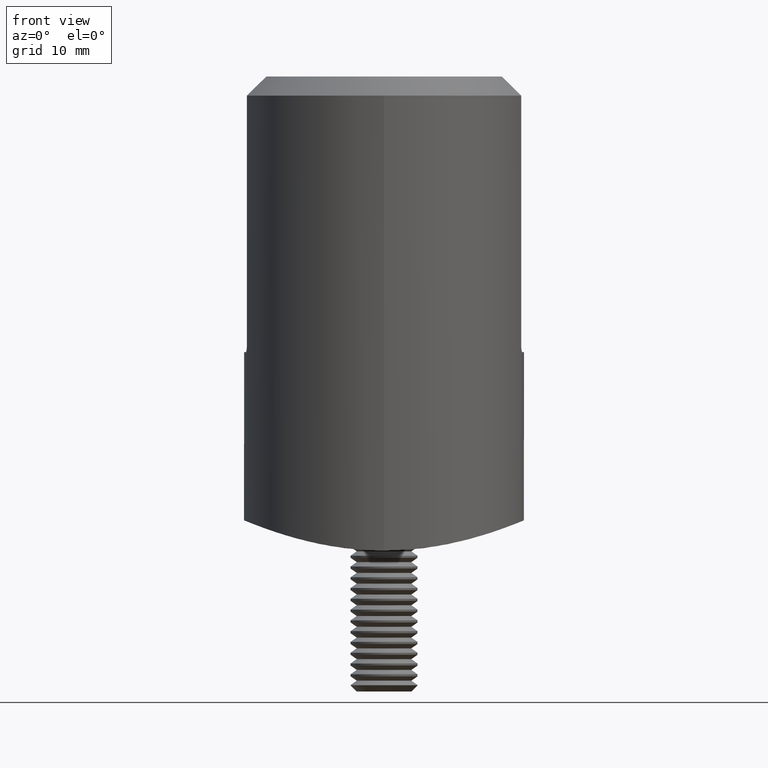
[diagram: clean part render]
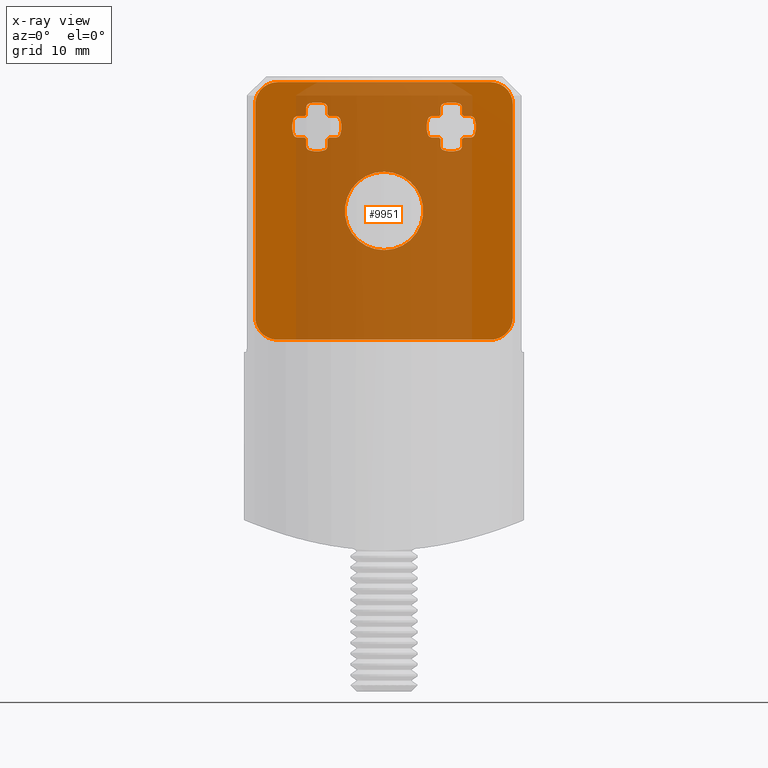
[diagram: x-ray — body ghosted, one internal face saturated and labeled with its STEP entity id]
A machine part, front view, then the same camera in x-ray: the body is ghosted and one INTERNAL B-rep face — a face not visible from any outside direction — is saturated and labeled: STEP entity #9951.
In plain terms, the highlighted planar face has unit normal (0, 1, 0).
Its self-contained STEP definition (entity closure, byte-faithful):
#58 = AXIS2_PLACEMENT_3D ( 'NONE', #18799, #20745, #11690 ) ;
#192 = DIRECTION ( 'NONE',  ( -0.000000000000000000, 1.000000000000000000, 0.000000000000000000 ) ) ;
#210 = CARTESIAN_POINT ( 'NONE',  ( -5.450000000000001954, 1.000000000000000000, 9.213913650100261421 ) ) ;
#223 = LINE ( 'NONE', #22734, #13898 ) ;
#231 = DIRECTION ( 'NONE',  ( 0.000000000000000000, 0.000000000000000000, -1.000000000000000000 ) ) ;
#240 = CARTESIAN_POINT ( 'NONE',  ( -7.713913650100259645, 1.000000000000000000, 8.049999999999997158 ) ) ;
#301 = EDGE_CURVE ( 'NONE', #4417, #6515, #223, .T. ) ;
#324 = DIRECTION ( 'NONE',  ( -0.000000000000000000, 1.000000000000000000, 0.000000000000000000 ) ) ;
#338 = CARTESIAN_POINT ( 'NONE',  ( 11.50000000000000000, 1.000000000000000000, 11.49999999999999822 ) ) ;
#375 = CARTESIAN_POINT ( 'NONE',  ( -6.950000000000002842, 1.000000000000000000, 0.000000000000000000 ) ) ;
#479 = CIRCLE ( 'NONE', #14997, 2.200000000000000622 ) ;
#503 = CIRCLE ( 'NONE', #13955, 2.200000000000000622 ) ;
#553 = EDGE_CURVE ( 'NONE', #1413, #20732, #2760, .T. ) ;
#574 = CARTESIAN_POINT ( 'NONE',  ( 5.050000000000003375, 1.000000000000000000, 5.786086349899735026 ) ) ;
#623 = EDGE_CURVE ( 'NONE', #3212, #16543, #5399, .T. ) ;
#761 = EDGE_CURVE ( 'NONE', #19794, #15722, #4260, .T. ) ;
#766 = VERTEX_POINT ( 'NONE', #11007 ) ;
#769 = CIRCLE ( 'NONE', #20100, 0.3999999999999993006 ) ;
#796 = VERTEX_POINT ( 'NONE', #7348 ) ;
#954 = DIRECTION ( 'NONE',  ( 0.000000000000000000, -1.000000000000000000, -0.000000000000000000 ) ) ;
#962 = VERTEX_POINT ( 'NONE', #22748 ) ;
#973 = ORIENTED_EDGE ( 'NONE', *, *, #17941, .T. ) ;
#993 = EDGE_CURVE ( 'NONE', #796, #21426, #10372, .T. ) ;
#1023 = LINE ( 'NONE', #7086, #22212 ) ;
#1083 = CARTESIAN_POINT ( 'NONE',  ( -4.102413672324902132E-15, 1.000000000000000000, 6.549999999999991829 ) ) ;
#1155 = ORIENTED_EDGE ( 'NONE', *, *, #17908, .T. ) ;
#1179 = VERTEX_POINT ( 'NONE', #3784 ) ;
#1210 = DIRECTION ( 'NONE',  ( -8.673617379884035472E-16, 0.000000000000000000, -1.000000000000000000 ) ) ;
#1258 = CIRCLE ( 'NONE', #14586, 2.200000000000000622 ) ;
#1303 = VECTOR ( 'NONE', #9917, 1000.000000000000000 ) ;
#1403 = DIRECTION ( 'NONE',  ( -0.000000000000000000, 1.000000000000000000, 0.000000000000000000 ) ) ;
#1413 = VERTEX_POINT ( 'NONE', #16980 ) ;
#1558 = VECTOR ( 'NONE', #21154, 1000.000000000000000 ) ;
#1572 = CARTESIAN_POINT ( 'NONE',  ( 0.000000000000000000, 1.000000000000000000, 3.499999999999999556 ) ) ;
#1666 = VECTOR ( 'NONE', #7416, 1000.000000000000000 ) ;
#1716 = CIRCLE ( 'NONE', #11156, 2.000000000000000000 ) ;
#1721 = AXIS2_PLACEMENT_3D ( 'NONE', #12728, #7114, #14383 ) ;
#1776 = VERTEX_POINT ( 'NONE', #1572 ) ;
#1853 = VERTEX_POINT ( 'NONE', #9840 ) ;
#1931 = ORIENTED_EDGE ( 'NONE', *, *, #12557, .T. ) ;
#1961 = CARTESIAN_POINT ( 'NONE',  ( 4.286086349899742132, 1.000000000000000000, 6.549999999999997158 ) ) ;
#1967 = CARTESIAN_POINT ( 'NONE',  ( -6.950000000000001954, 1.000000000000000000, 9.213913650100257868 ) ) ;
#1992 = CIRCLE ( 'NONE', #6859, 0.4000000000000001887 ) ;
#1993 = EDGE_LOOP ( 'NONE', ( #20672, #4667, #9730, #19158, #17075, #11727, #9665, #19939 ) ) ;
#2037 = EDGE_CURVE ( 'NONE', #21394, #6170, #11128, .T. ) ;
#2109 = CIRCLE ( 'NONE', #7543, 3.499999999999999556 ) ;
#2178 = EDGE_CURVE ( 'NONE', #11053, #21752, #19521, .T. ) ;
#2271 = EDGE_CURVE ( 'NONE', #6515, #20481, #9465, .T. ) ;
#2282 = ORIENTED_EDGE ( 'NONE', *, *, #2679, .T. ) ;
#2361 = CARTESIAN_POINT ( 'NONE',  ( 0.000000000000000000, 1.000000000000000000, 8.449999999999997513 ) ) ;
#2451 = CIRCLE ( 'NONE', #16913, 1.450000000000001732 ) ;
#2507 = CARTESIAN_POINT ( 'NONE',  ( -4.904554884986473517, 1.000000000000000000, 6.549999999999997158 ) ) ;
#2558 = CIRCLE ( 'NONE', #13274, 1.450000000000001732 ) ;
#2606 = VECTOR ( 'NONE', #8911, 1000.000000000000000 ) ;
#2679 = EDGE_CURVE ( 'NONE', #1853, #15145, #7787, .T. ) ;
#2760 = CIRCLE ( 'NONE', #16167, 2.200000000000000622 ) ;
#2773 = DIRECTION ( 'NONE',  ( -0.000000000000000000, 1.000000000000000000, 0.000000000000000000 ) ) ;
#2778 = CARTESIAN_POINT ( 'NONE',  ( 6.550000000000002487, 1.000000000000000000, 9.213913650100257868 ) ) ;
#2836 = CARTESIAN_POINT ( 'NONE',  ( 5.050000000000006928, 1.000000000000000000, 3.162929625227602515E-15 ) ) ;
#2855 = DIRECTION ( 'NONE',  ( -0.000000000000000000, 1.000000000000000000, 0.000000000000000000 ) ) ;
#2977 = CARTESIAN_POINT ( 'NONE',  ( -9.500000000000005329, 1.000000000000000000, -11.49999999999999112 ) ) ;
#3015 = VECTOR ( 'NONE', #14318, 1000.000000000000000 ) ;
#3046 = CARTESIAN_POINT ( 'NONE',  ( 6.000000000000002665, 1.000000000000000000, 7.499999999999996447 ) ) ;
#3049 = CARTESIAN_POINT ( 'NONE',  ( -7.713913650100259645, 1.000000000000000000, 8.449999999999997513 ) ) ;
#3061 = FACE_OUTER_BOUND ( 'NONE', #1993, .T. ) ;
#3126 = DIRECTION ( 'NONE',  ( 0.000000000000000000, 0.000000000000000000, -1.000000000000000000 ) ) ;
#3139 = EDGE_CURVE ( 'NONE', #4417, #22281, #8588, .T. ) ;
#3141 = DIRECTION ( 'NONE',  ( 0.000000000000000000, 0.000000000000000000, -1.000000000000000000 ) ) ;
#3168 = DIRECTION ( 'NONE',  ( 6.263226980648709475E-16, 0.000000000000000000, 1.000000000000000000 ) ) ;
#3202 = CIRCLE ( 'NONE', #13502, 1.450000000000001732 ) ;
#3212 = VERTEX_POINT ( 'NONE', #1967 ) ;
#3256 = DIRECTION ( 'NONE',  ( -0.000000000000000000, 1.000000000000000000, 0.000000000000000000 ) ) ;
#3291 = CARTESIAN_POINT ( 'NONE',  ( 0.000000000000000000, 1.000000000000000000, 0.000000000000000000 ) ) ;
#3337 = AXIS2_PLACEMENT_3D ( 'NONE', #15627, #8229, #1210 ) ;
#3365 = ORIENTED_EDGE ( 'NONE', *, *, #17071, .F. ) ;
#3378 = LINE ( 'NONE', #7955, #8144 ) ;
#3396 = ORIENTED_EDGE ( 'NONE', *, *, #20485, .F. ) ;
#3457 = VERTEX_POINT ( 'NONE', #9598 ) ;
#3493 = CARTESIAN_POINT ( 'NONE',  ( 0.000000000000000000, 1.000000000000000000, 6.549999999999997158 ) ) ;
#3548 = EDGE_CURVE ( 'NONE', #21394, #1179, #16955, .T. ) ;
#3604 = VERTEX_POINT ( 'NONE', #19109 ) ;
#3616 = FACE_BOUND ( 'NONE', #16482, .T. ) ;
#3649 = ORIENTED_EDGE ( 'NONE', *, *, #21243, .F. ) ;
#3651 = CARTESIAN_POINT ( 'NONE',  ( -7.095445115011707493, 1.000000000000000000, 8.449999999998414779 ) ) ;
#3695 = CARTESIAN_POINT ( 'NONE',  ( 8.094783350122543908, 1.000000000000000000, 6.827777777777773061 ) ) ;
#3734 = ORIENTED_EDGE ( 'NONE', *, *, #12730, .T. ) ;
#3784 = CARTESIAN_POINT ( 'NONE',  ( 5.050000000001583444, 1.000000000000000000, 8.595445115011701276 ) ) ;
#3805 = VERTEX_POINT ( 'NONE', #19494 ) ;
#3807 = EDGE_CURVE ( 'NONE', #3894, #17754, #503, .T. ) ;
#3831 = LINE ( 'NONE', #8892, #1666 ) ;
#3833 = ORIENTED_EDGE ( 'NONE', *, *, #12246, .T. ) ;
#3894 = VERTEX_POINT ( 'NONE', #15638 ) ;
#3913 = DIRECTION ( 'NONE',  ( 0.000000000000000000, 0.000000000000000000, -1.000000000000000000 ) ) ;
#3921 = CIRCLE ( 'NONE', #7757, 2.200000000000000622 ) ;
#4055 = AXIS2_PLACEMENT_3D ( 'NONE', #6706, #3256, #15759 ) ;
#4090 = DIRECTION ( 'NONE',  ( -0.000000000000000000, 1.000000000000000000, 0.000000000000000000 ) ) ;
#4200 = CARTESIAN_POINT ( 'NONE',  ( 11.49999999999999645, 1.000000000000000000, -9.500000000000000000 ) ) ;
#4260 = LINE ( 'NONE', #338, #2606 ) ;
#4319 = VERTEX_POINT ( 'NONE', #3651 ) ;
#4347 = CARTESIAN_POINT ( 'NONE',  ( -6.000000000000002665, 1.000000000000000000, 7.499999999999996447 ) ) ;
#4417 = VERTEX_POINT ( 'NONE', #11450 ) ;
#4480 = ORIENTED_EDGE ( 'NONE', *, *, #553, .T. ) ;
#4497 = CARTESIAN_POINT ( 'NONE',  ( -6.950000000000002842, 1.000000000000000000, 8.499999999999994671 ) ) ;
#4500 = CARTESIAN_POINT ( 'NONE',  ( -5.050000000000002487, 1.000000000000000000, 0.000000000000000000 ) ) ;
#4575 = LINE ( 'NONE', #3493, #1558 ) ;
#4615 = DIRECTION ( 'NONE',  ( 6.263226980648709475E-16, -0.000000000000000000, -1.000000000000000000 ) ) ;
#4637 = CARTESIAN_POINT ( 'NONE',  ( 4.286086349899742132, 1.000000000000000000, 8.449999999999997513 ) ) ;
#4667 = ORIENTED_EDGE ( 'NONE', *, *, #5213, .T. ) ;
#4727 = FACE_BOUND ( 'NONE', #14906, .T. ) ;
#4737 = CARTESIAN_POINT ( 'NONE',  ( 7.095445115013530923, 1.000000000000000000, 8.449999999999997513 ) ) ;
#4929 = CARTESIAN_POINT ( 'NONE',  ( -9.500000000000000000, 1.000000000000000000, 11.49999999999999645 ) ) ;
#4984 = ORIENTED_EDGE ( 'NONE', *, *, #17798, .T. ) ;
#5052 = DIRECTION ( 'NONE',  ( -6.263226980648714405E-16, -0.000000000000000000, 1.000000000000000000 ) ) ;
#5054 = VECTOR ( 'NONE', #6932, 1000.000000000000000 ) ;
#5061 = ORIENTED_EDGE ( 'NONE', *, *, #16147, .T. ) ;
#5118 = CARTESIAN_POINT ( 'NONE',  ( 6.949999999998421885, 1.000000000000000000, 8.595445115011701276 ) ) ;
#5130 = CIRCLE ( 'NONE', #18604, 2.000000000000000000 ) ;
#5213 = EDGE_CURVE ( 'NONE', #21426, #18526, #12705, .T. ) ;
#5273 = CARTESIAN_POINT ( 'NONE',  ( 5.327777777777778390, 1.000000000000000000, 9.594783350122536802 ) ) ;
#5287 = CARTESIAN_POINT ( 'NONE',  ( -6.672222222222226939, 1.000000000000000000, 5.405216649877457868 ) ) ;
#5319 = DIRECTION ( 'NONE',  ( -0.000000000000000000, 1.000000000000000000, 0.000000000000000000 ) ) ;
#5399 = LINE ( 'NONE', #4497, #18232 ) ;
#5402 = CARTESIAN_POINT ( 'NONE',  ( 7.713913650100264086, 1.000000000000000000, 8.049999999999997158 ) ) ;
#5469 = DIRECTION ( 'NONE',  ( 0.000000000000000000, 0.000000000000000000, -1.000000000000000000 ) ) ;
#5572 = AXIS2_PLACEMENT_3D ( 'NONE', #5759, #16439, #7792 ) ;
#5576 = CIRCLE ( 'NONE', #10001, 0.4000000000000001887 ) ;
#5610 = EDGE_CURVE ( 'NONE', #4319, #11961, #11840, .T. ) ;
#5755 = EDGE_CURVE ( 'NONE', #20481, #15097, #4575, .T. ) ;
#5759 = CARTESIAN_POINT ( 'NONE',  ( -6.000000000000002665, 1.000000000000000000, 7.499999999999996447 ) ) ;
#6028 = LINE ( 'NONE', #18959, #1303 ) ;
#6131 = CARTESIAN_POINT ( 'NONE',  ( -4.286086349899735914, 1.000000000000000000, 8.049999999999997158 ) ) ;
#6139 = AXIS2_PLACEMENT_3D ( 'NONE', #6171, #18649, #19211 ) ;
#6155 = VERTEX_POINT ( 'NONE', #3695 ) ;
#6170 = VERTEX_POINT ( 'NONE', #5273 ) ;
#6171 = CARTESIAN_POINT ( 'NONE',  ( 9.499999999999996447, 1.000000000000000000, -9.500000000000000000 ) ) ;
#6195 = VERTEX_POINT ( 'NONE', #19492 ) ;
#6241 = AXIS2_PLACEMENT_3D ( 'NONE', #7460, #19966, #9254 ) ;
#6312 = CARTESIAN_POINT ( 'NONE',  ( 5.050000000000002487, 1.000000000000000000, 8.499999999999994671 ) ) ;
#6373 = DIRECTION ( 'NONE',  ( 0.000000000000000000, 0.000000000000000000, -1.000000000000000000 ) ) ;
#6510 = AXIS2_PLACEMENT_3D ( 'NONE', #20627, #6742, #22553 ) ;
#6515 = VERTEX_POINT ( 'NONE', #10411 ) ;
#6548 = AXIS2_PLACEMENT_3D ( 'NONE', #10684, #18396, #7727 ) ;
#6594 = VECTOR ( 'NONE', #22435, 1000.000000000000000 ) ;
#6706 = CARTESIAN_POINT ( 'NONE',  ( 5.450000000000002842, 1.000000000000000000, 5.786086349899735026 ) ) ;
#6708 = EDGE_CURVE ( 'NONE', #7193, #21456, #5130, .T. ) ;
#6728 = VERTEX_POINT ( 'NONE', #17056 ) ;
#6742 = DIRECTION ( 'NONE',  ( -0.000000000000000000, 1.000000000000000000, 0.000000000000000000 ) ) ;
#6753 = ORIENTED_EDGE ( 'NONE', *, *, #7885, .F. ) ;
#6818 = VERTEX_POINT ( 'NONE', #21129 ) ;
#6819 = DIRECTION ( 'NONE',  ( 0.000000000000000000, -1.000000000000000000, 0.000000000000000000 ) ) ;
#6842 = DIRECTION ( 'NONE',  ( 0.000000000000000000, -1.000000000000000000, -0.000000000000000000 ) ) ;
#6849 = DIRECTION ( 'NONE',  ( 0.000000000000000000, -1.000000000000000000, -0.000000000000000000 ) ) ;
#6859 = AXIS2_PLACEMENT_3D ( 'NONE', #9648, #11271, #12912 ) ;
#6878 = ORIENTED_EDGE ( 'NONE', *, *, #14204, .F. ) ;
#6928 = ORIENTED_EDGE ( 'NONE', *, *, #11594, .T. ) ;
#6930 = CARTESIAN_POINT ( 'NONE',  ( 6.672222222222225163, 1.000000000000000000, 9.594783350122536802 ) ) ;
#6932 = DIRECTION ( 'NONE',  ( -1.000000000000000000, -0.000000000000000000, 5.279593187755499510E-16 ) ) ;
#6958 = DIRECTION ( 'NONE',  ( 0.000000000000000000, -1.000000000000000000, -0.000000000000000000 ) ) ;
#7086 = CARTESIAN_POINT ( 'NONE',  ( 6.950000000000008171, 1.000000000000000000, 4.352942751550861476E-15 ) ) ;
#7114 = DIRECTION ( 'NONE',  ( 0.000000000000000000, -1.000000000000000000, -0.000000000000000000 ) ) ;
#7123 = DIRECTION ( 'NONE',  ( -0.000000000000000000, 1.000000000000000000, 0.000000000000000000 ) ) ;
#7147 = DIRECTION ( 'NONE',  ( 0.000000000000000000, 0.000000000000000000, -1.000000000000000000 ) ) ;
#7193 = VERTEX_POINT ( 'NONE', #21974 ) ;
#7271 = CARTESIAN_POINT ( 'NONE',  ( 6.950000000000001954, 1.000000000000000000, 9.213913650100257868 ) ) ;
#7285 = CARTESIAN_POINT ( 'NONE',  ( 9.500000000000000000, 1.000000000000000000, 9.499999999999998224 ) ) ;
#7340 = LINE ( 'NONE', #9268, #17113 ) ;
#7348 = CARTESIAN_POINT ( 'NONE',  ( 9.499999999999994671, 1.000000000000000000, -11.50000000000000000 ) ) ;
#7377 = DIRECTION ( 'NONE',  ( -0.000000000000000000, 1.000000000000000000, 0.000000000000000000 ) ) ;
#7416 = DIRECTION ( 'NONE',  ( 1.508455196501572415E-16, -0.000000000000000000, 1.000000000000000000 ) ) ;
#7460 = CARTESIAN_POINT ( 'NONE',  ( 6.000000000000002665, 1.000000000000000000, 7.499999999999996447 ) ) ;
#7478 = CARTESIAN_POINT ( 'NONE',  ( 6.000000000000002665, 1.000000000000000000, 7.499999999999996447 ) ) ;
#7543 = AXIS2_PLACEMENT_3D ( 'NONE', #13264, #22144, #20453 ) ;
#7551 = ORIENTED_EDGE ( 'NONE', *, *, #623, .T. ) ;
#7567 = DIRECTION ( 'NONE',  ( 0.000000000000000000, -1.000000000000000000, -0.000000000000000000 ) ) ;
#7641 = EDGE_CURVE ( 'NONE', #13783, #3805, #7340, .T. ) ;
#7727 = DIRECTION ( 'NONE',  ( 0.000000000000000000, 0.000000000000000000, -1.000000000000000000 ) ) ;
#7757 = AXIS2_PLACEMENT_3D ( 'NONE', #16093, #6958, #17749 ) ;
#7787 = LINE ( 'NONE', #19472, #3015 ) ;
#7792 = DIRECTION ( 'NONE',  ( 0.000000000000000000, 0.000000000000000000, -1.000000000000000000 ) ) ;
#7863 = VERTEX_POINT ( 'NONE', #8466 ) ;
#7877 = EDGE_CURVE ( 'NONE', #3805, #8539, #13187, .T. ) ;
#7885 = EDGE_CURVE ( 'NONE', #3894, #15097, #14884, .T. ) ;
#7943 = EDGE_CURVE ( 'NONE', #8539, #21752, #12904, .T. ) ;
#7955 = CARTESIAN_POINT ( 'NONE',  ( -5.000000000000003553, 1.000000000000000000, 8.449999999999997513 ) ) ;
#8144 = VECTOR ( 'NONE', #15048, 1000.000000000000000 ) ;
#8229 = DIRECTION ( 'NONE',  ( -0.000000000000000000, 1.000000000000000000, 0.000000000000000000 ) ) ;
#8246 = ORIENTED_EDGE ( 'NONE', *, *, #12071, .T. ) ;
#8376 = DIRECTION ( 'NONE',  ( 0.000000000000000000, -1.000000000000000000, -0.000000000000000000 ) ) ;
#8419 = VECTOR ( 'NONE', #18012, 1000.000000000000000 ) ;
#8466 = CARTESIAN_POINT ( 'NONE',  ( -5.327777777777780166, 1.000000000000000000, 9.594783350122540355 ) ) ;
#8482 = CIRCLE ( 'NONE', #20688, 0.3999999999999993006 ) ;
#8539 = VERTEX_POINT ( 'NONE', #10698 ) ;
#8570 = CIRCLE ( 'NONE', #22443, 2.200000000000000622 ) ;
#8588 = CIRCLE ( 'NONE', #9926, 0.4000000000000001887 ) ;
#8757 = EDGE_CURVE ( 'NONE', #18615, #16619, #3378, .T. ) ;
#8814 = CARTESIAN_POINT ( 'NONE',  ( 0.000000000000000000, 1.000000000000000000, 8.449999999999997513 ) ) ;
#8892 = CARTESIAN_POINT ( 'NONE',  ( -11.50000000000000000, 1.000000000000000000, 11.49999999999999645 ) ) ;
#8911 = DIRECTION ( 'NONE',  ( -1.508455196501571429E-16, 0.000000000000000000, -1.000000000000000000 ) ) ;
#8994 = VERTEX_POINT ( 'NONE', #4637 ) ;
#9176 = DIRECTION ( 'NONE',  ( 1.000000000000000000, 0.000000000000000000, -6.263226980648714405E-16 ) ) ;
#9220 = CIRCLE ( 'NONE', #9399, 0.3999999999999993006 ) ;
#9254 = DIRECTION ( 'NONE',  ( 0.000000000000000000, 0.000000000000000000, -1.000000000000000000 ) ) ;
#9268 = CARTESIAN_POINT ( 'NONE',  ( 5.000000000000003553, 1.000000000000000000, 6.549999999999997158 ) ) ;
#9399 = AXIS2_PLACEMENT_3D ( 'NONE', #2778, #2855, #6373 ) ;
#9465 = CIRCLE ( 'NONE', #5572, 1.450000000000001732 ) ;
#9507 = DIRECTION ( 'NONE',  ( -2.168404344971007685E-15, 0.000000000000000000, -1.000000000000000000 ) ) ;
#9568 = EDGE_CURVE ( 'NONE', #21456, #766, #20405, .T. ) ;
#9598 = CARTESIAN_POINT ( 'NONE',  ( -5.050000000000002487, 1.000000000000000000, 8.595445115013525594 ) ) ;
#9643 = ORIENTED_EDGE ( 'NONE', *, *, #5755, .T. ) ;
#9648 = CARTESIAN_POINT ( 'NONE',  ( 7.713913650100264086, 1.000000000000000000, 6.949999999999995737 ) ) ;
#9665 = ORIENTED_EDGE ( 'NONE', *, *, #761, .T. ) ;
#9730 = ORIENTED_EDGE ( 'NONE', *, *, #15258, .T. ) ;
#9762 = CIRCLE ( 'NONE', #13395, 1.450000000000001732 ) ;
#9766 = AXIS2_PLACEMENT_3D ( 'NONE', #10954, #7377, #12675 ) ;
#9794 = LINE ( 'NONE', #1083, #22605 ) ;
#9840 = CARTESIAN_POINT ( 'NONE',  ( 7.713913650100264086, 1.000000000000000000, 8.449999999999997513 ) ) ;
#9917 = DIRECTION ( 'NONE',  ( 0.000000000000000000, 0.000000000000000000, 1.000000000000000000 ) ) ;
#9926 = AXIS2_PLACEMENT_3D ( 'NONE', #17417, #21087, #10392 ) ;
#9951 = ADVANCED_FACE ( 'NONE', ( #17621, #3061, #4727, #3616 ), #13849, .F. ) ;
#9966 = EDGE_CURVE ( 'NONE', #766, #19794, #1716, .T. ) ;
#9992 = CIRCLE ( 'NONE', #13309, 1.450000000000001732 ) ;
#9994 = EDGE_CURVE ( 'NONE', #13783, #10332, #11175, .T. ) ;
#10001 = AXIS2_PLACEMENT_3D ( 'NONE', #10661, #16114, #21491 ) ;
#10176 = CARTESIAN_POINT ( 'NONE',  ( 5.050000000000002487, 1.000000000000000000, 9.213913650100257868 ) ) ;
#10178 = VERTEX_POINT ( 'NONE', #18808 ) ;
#10194 = ORIENTED_EDGE ( 'NONE', *, *, #17938, .T. ) ;
#10332 = VERTEX_POINT ( 'NONE', #22989 ) ;
#10355 = ORIENTED_EDGE ( 'NONE', *, *, #12823, .F. ) ;
#10372 = LINE ( 'NONE', #19125, #5054 ) ;
#10374 = ORIENTED_EDGE ( 'NONE', *, *, #11580, .T. ) ;
#10392 = DIRECTION ( 'NONE',  ( 0.000000000000000000, 0.000000000000000000, -1.000000000000000000 ) ) ;
#10394 = CARTESIAN_POINT ( 'NONE',  ( -6.000000000000002665, 1.000000000000000000, 7.499999999999996447 ) ) ;
#10411 = CARTESIAN_POINT ( 'NONE',  ( -5.050000000001583444, 1.000000000000000000, 6.404554884988290731 ) ) ;
#10457 = EDGE_CURVE ( 'NONE', #1413, #11961, #22015, .T. ) ;
#10597 = DIRECTION ( 'NONE',  ( 0.000000000000000000, 0.000000000000000000, -1.000000000000000000 ) ) ;
#10661 = CARTESIAN_POINT ( 'NONE',  ( 6.550000000000003375, 1.000000000000000000, 5.786086349899735026 ) ) ;
#10679 = CARTESIAN_POINT ( 'NONE',  ( -6.672222222222226051, 1.000000000000000000, 9.594783350122536802 ) ) ;
#10684 = CARTESIAN_POINT ( 'NONE',  ( -6.000000000000002665, 1.000000000000000000, 7.499999999999996447 ) ) ;
#10698 = CARTESIAN_POINT ( 'NONE',  ( 5.050000000000002487, 1.000000000000000000, 6.404554884986466412 ) ) ;
#10708 = EDGE_CURVE ( 'NONE', #12458, #17042, #9220, .T. ) ;
#10902 = CIRCLE ( 'NONE', #16420, 0.4000000000000001887 ) ;
#10954 = CARTESIAN_POINT ( 'NONE',  ( 4.286086349899742132, 1.000000000000000000, 8.049999999999997158 ) ) ;
#11007 = CARTESIAN_POINT ( 'NONE',  ( 9.499999999999998224, 1.000000000000000000, 11.49999999999999822 ) ) ;
#11053 = VERTEX_POINT ( 'NONE', #14646 ) ;
#11089 = VECTOR ( 'NONE', #15129, 1000.000000000000000 ) ;
#11112 = CARTESIAN_POINT ( 'NONE',  ( -7.000000000000002665, 1.000000000000000000, 6.549999999999996270 ) ) ;
#11113 = DIRECTION ( 'NONE',  ( -0.000000000000000000, 1.000000000000000000, 0.000000000000000000 ) ) ;
#11124 = ORIENTED_EDGE ( 'NONE', *, *, #7877, .T. ) ;
#11128 = CIRCLE ( 'NONE', #58, 0.3999999999999993006 ) ;
#11142 = DIRECTION ( 'NONE',  ( 0.000000000000000000, 0.000000000000000000, -1.000000000000000000 ) ) ;
#11156 = AXIS2_PLACEMENT_3D ( 'NONE', #7285, #16244, #21553 ) ;
#11175 = CIRCLE ( 'NONE', #21181, 0.4000000000000001887 ) ;
#11271 = DIRECTION ( 'NONE',  ( -0.000000000000000000, 1.000000000000000000, 0.000000000000000000 ) ) ;
#11290 = ORIENTED_EDGE ( 'NONE', *, *, #17346, .T. ) ;
#11450 = CARTESIAN_POINT ( 'NONE',  ( -5.050000000000003375, 1.000000000000000000, 5.786086349899735026 ) ) ;
#11467 = ORIENTED_EDGE ( 'NONE', *, *, #10457, .F. ) ;
#11480 = EDGE_CURVE ( 'NONE', #15145, #11550, #9762, .T. ) ;
#11550 = VERTEX_POINT ( 'NONE', #5118 ) ;
#11580 = EDGE_CURVE ( 'NONE', #6155, #6728, #22280, .T. ) ;
#11594 = EDGE_CURVE ( 'NONE', #6818, #16132, #18383, .T. ) ;
#11629 = AXIS2_PLACEMENT_3D ( 'NONE', #12068, #1403, #10597 ) ;
#11686 = ORIENTED_EDGE ( 'NONE', *, *, #7641, .T. ) ;
#11690 = DIRECTION ( 'NONE',  ( 0.000000000000000000, 0.000000000000000000, -1.000000000000000000 ) ) ;
#11727 = ORIENTED_EDGE ( 'NONE', *, *, #9966, .T. ) ;
#11840 = LINE ( 'NONE', #2361, #20521 ) ;
#11961 = VERTEX_POINT ( 'NONE', #3049 ) ;
#12025 = CIRCLE ( 'NONE', #11629, 0.4000000000000001887 ) ;
#12026 = ORIENTED_EDGE ( 'NONE', *, *, #16250, .F. ) ;
#12035 = EDGE_CURVE ( 'NONE', #15897, #16132, #18182, .T. ) ;
#12050 = AXIS2_PLACEMENT_3D ( 'NONE', #3291, #6819, #14081 ) ;
#12068 = CARTESIAN_POINT ( 'NONE',  ( -7.713913650100257868, 1.000000000000000000, 6.949999999999995737 ) ) ;
#12071 = EDGE_CURVE ( 'NONE', #7863, #19304, #3921, .T. ) ;
#12174 = CARTESIAN_POINT ( 'NONE',  ( -8.094783350122538579, 1.000000000000000000, 6.827777777777773061 ) ) ;
#12246 = EDGE_CURVE ( 'NONE', #10178, #6818, #2558, .T. ) ;
#12342 = VERTEX_POINT ( 'NONE', #20666 ) ;
#12439 = DIRECTION ( 'NONE',  ( 0.000000000000000000, 0.000000000000000000, -1.000000000000000000 ) ) ;
#12458 = VERTEX_POINT ( 'NONE', #6930 ) ;
#12529 = CARTESIAN_POINT ( 'NONE',  ( 6.000000000000002665, 1.000000000000000000, 7.499999999999996447 ) ) ;
#12546 = CIRCLE ( 'NONE', #6139, 2.000000000000000000 ) ;
#12557 = EDGE_CURVE ( 'NONE', #16543, #4319, #14005, .T. ) ;
#12575 = CARTESIAN_POINT ( 'NONE',  ( -6.550000000000002487, 1.000000000000000000, 9.213913650100257868 ) ) ;
#12675 = DIRECTION ( 'NONE',  ( 0.000000000000000000, 0.000000000000000000, -1.000000000000000000 ) ) ;
#12678 = CARTESIAN_POINT ( 'NONE',  ( 4.904554884986475294, 1.000000000000000000, 8.449999999999997513 ) ) ;
#12690 = ORIENTED_EDGE ( 'NONE', *, *, #5610, .T. ) ;
#12705 = CIRCLE ( 'NONE', #3337, 2.000000000000000000 ) ;
#12728 = CARTESIAN_POINT ( 'NONE',  ( -5.999999999999997335, 1.000000000000000000, 7.499999999999998224 ) ) ;
#12730 = EDGE_CURVE ( 'NONE', #21679, #21253, #9794, .T. ) ;
#12823 = EDGE_CURVE ( 'NONE', #962, #20732, #12025, .T. ) ;
#12848 = CARTESIAN_POINT ( 'NONE',  ( -6.950000000000002842, 1.000000000000000000, 5.786086349899738579 ) ) ;
#12884 = ORIENTED_EDGE ( 'NONE', *, *, #20290, .T. ) ;
#12904 = LINE ( 'NONE', #2836, #18211 ) ;
#12909 = DIRECTION ( 'NONE',  ( -0.000000000000000000, -0.000000000000000000, -1.000000000000000000 ) ) ;
#12912 = DIRECTION ( 'NONE',  ( 0.000000000000000000, 0.000000000000000000, -1.000000000000000000 ) ) ;
#12918 = EDGE_CURVE ( 'NONE', #6155, #21253, #1992, .T. ) ;
#12975 = AXIS2_PLACEMENT_3D ( 'NONE', #240, #324, #16070 ) ;
#13066 = DIRECTION ( 'NONE',  ( 1.000000000000000000, 0.000000000000000000, 0.000000000000000000 ) ) ;
#13131 = EDGE_CURVE ( 'NONE', #1853, #6728, #10902, .T. ) ;
#13187 = CIRCLE ( 'NONE', #16210, 1.450000000000001732 ) ;
#13259 = DIRECTION ( 'NONE',  ( 0.000000000000000000, -1.000000000000000000, -0.000000000000000000 ) ) ;
#13264 = CARTESIAN_POINT ( 'NONE',  ( 0.000000000000000000, 1.000000000000000000, 0.000000000000000000 ) ) ;
#13274 = AXIS2_PLACEMENT_3D ( 'NONE', #4347, #13259, #15143 ) ;
#13276 = LINE ( 'NONE', #11112, #22743 ) ;
#13309 = AXIS2_PLACEMENT_3D ( 'NONE', #13889, #13962, #19037 ) ;
#13395 = AXIS2_PLACEMENT_3D ( 'NONE', #12529, #6842, #7147 ) ;
#13456 = CARTESIAN_POINT ( 'NONE',  ( -9.500000000000000000, 1.000000000000000000, 9.499999999999996447 ) ) ;
#13502 = AXIS2_PLACEMENT_3D ( 'NONE', #10394, #19523, #21230 ) ;
#13530 = ORIENTED_EDGE ( 'NONE', *, *, #17028, .T. ) ;
#13783 = VERTEX_POINT ( 'NONE', #1961 ) ;
#13849 = PLANE ( 'NONE',  #12050 ) ;
#13889 = CARTESIAN_POINT ( 'NONE',  ( 6.000000000000002665, 1.000000000000000000, 7.499999999999996447 ) ) ;
#13898 = VECTOR ( 'NONE', #3168, 1000.000000000000000 ) ;
#13955 = AXIS2_PLACEMENT_3D ( 'NONE', #22801, #6849, #14109 ) ;
#13962 = DIRECTION ( 'NONE',  ( 0.000000000000000000, -1.000000000000000000, -0.000000000000000000 ) ) ;
#14005 = CIRCLE ( 'NONE', #6548, 1.450000000000001732 ) ;
#14081 = DIRECTION ( 'NONE',  ( 0.000000000000000000, 0.000000000000000000, -1.000000000000000000 ) ) ;
#14107 = ORIENTED_EDGE ( 'NONE', *, *, #301, .T. ) ;
#14109 = DIRECTION ( 'NONE',  ( 0.000000000000000000, 0.000000000000000000, -1.000000000000000000 ) ) ;
#14122 = DIRECTION ( 'NONE',  ( -1.000000000000000000, -0.000000000000000000, -0.000000000000000000 ) ) ;
#14160 = DIRECTION ( 'NONE',  ( 0.000000000000000000, 0.000000000000000000, -1.000000000000000000 ) ) ;
#14204 = EDGE_CURVE ( 'NONE', #22934, #16708, #5576, .T. ) ;
#14217 = VECTOR ( 'NONE', #12909, 1000.000000000000000 ) ;
#14300 = DIRECTION ( 'NONE',  ( -0.000000000000000000, 1.000000000000000000, 0.000000000000000000 ) ) ;
#14318 = DIRECTION ( 'NONE',  ( -1.000000000000000000, 0.000000000000000000, 0.000000000000000000 ) ) ;
#14363 = CARTESIAN_POINT ( 'NONE',  ( 6.000000000000002665, 1.000000000000000000, 7.499999999999996447 ) ) ;
#14383 = DIRECTION ( 'NONE',  ( 0.000000000000000000, 0.000000000000000000, -1.000000000000000000 ) ) ;
#14481 = CARTESIAN_POINT ( 'NONE',  ( 6.672222222222226939, 1.000000000000000000, 5.405216649877455204 ) ) ;
#14586 = AXIS2_PLACEMENT_3D ( 'NONE', #14363, #21740, #16139 ) ;
#14646 = CARTESIAN_POINT ( 'NONE',  ( 5.327777777777780166, 1.000000000000000000, 5.405216649877454316 ) ) ;
#14743 = DIRECTION ( 'NONE',  ( -6.263226980648714405E-16, 0.000000000000000000, -1.000000000000000000 ) ) ;
#14865 = CARTESIAN_POINT ( 'NONE',  ( 7.713913650100264086, 1.000000000000000000, 6.549999999999997158 ) ) ;
#14884 = CIRCLE ( 'NONE', #6510, 0.4000000000000001887 ) ;
#14906 = EDGE_LOOP ( 'NONE', ( #3396 ) ) ;
#14934 = AXIS2_PLACEMENT_3D ( 'NONE', #15935, #5319, #15859 ) ;
#14997 = AXIS2_PLACEMENT_3D ( 'NONE', #18874, #954, #22283 ) ;
#15032 = ORIENTED_EDGE ( 'NONE', *, *, #2037, .F. ) ;
#15048 = DIRECTION ( 'NONE',  ( -1.000000000000000000, 0.000000000000000000, 0.000000000000000000 ) ) ;
#15050 = EDGE_CURVE ( 'NONE', #15722, #796, #12546, .T. ) ;
#15097 = VERTEX_POINT ( 'NONE', #22445 ) ;
#15110 = ORIENTED_EDGE ( 'NONE', *, *, #8757, .T. ) ;
#15129 = DIRECTION ( 'NONE',  ( -0.000000000000000000, 0.000000000000000000, -1.000000000000000000 ) ) ;
#15143 = DIRECTION ( 'NONE',  ( 0.000000000000000000, 0.000000000000000000, -1.000000000000000000 ) ) ;
#15145 = VERTEX_POINT ( 'NONE', #4737 ) ;
#15258 = EDGE_CURVE ( 'NONE', #18526, #7193, #3831, .T. ) ;
#15278 = CIRCLE ( 'NONE', #22858, 0.4000000000000001887 ) ;
#15627 = CARTESIAN_POINT ( 'NONE',  ( -9.500000000000003553, 1.000000000000000000, -9.499999999999987566 ) ) ;
#15638 = CARTESIAN_POINT ( 'NONE',  ( -3.905216649877456536, 1.000000000000000000, 6.827777777777773061 ) ) ;
#15667 = ORIENTED_EDGE ( 'NONE', *, *, #15845, .T. ) ;
#15722 = VERTEX_POINT ( 'NONE', #4200 ) ;
#15748 = ORIENTED_EDGE ( 'NONE', *, *, #7943, .T. ) ;
#15759 = DIRECTION ( 'NONE',  ( 0.000000000000000000, 0.000000000000000000, -1.000000000000000000 ) ) ;
#15845 = EDGE_CURVE ( 'NONE', #3604, #21679, #9992, .T. ) ;
#15859 = DIRECTION ( 'NONE',  ( 0.000000000000000000, 0.000000000000000000, -1.000000000000000000 ) ) ;
#15897 = VERTEX_POINT ( 'NONE', #5287 ) ;
#15935 = CARTESIAN_POINT ( 'NONE',  ( -6.550000000000003375, 1.000000000000000000, 5.786086349899738579 ) ) ;
#15955 = CARTESIAN_POINT ( 'NONE',  ( -4.904554884988297836, 1.000000000000000000, 8.449999999998414779 ) ) ;
#16010 = EDGE_CURVE ( 'NONE', #16622, #8994, #17244, .T. ) ;
#16070 = DIRECTION ( 'NONE',  ( 0.000000000000000000, 0.000000000000000000, -1.000000000000000000 ) ) ;
#16085 = LINE ( 'NONE', #4500, #6594 ) ;
#16093 = CARTESIAN_POINT ( 'NONE',  ( -5.999999999999997335, 1.000000000000000000, 7.499999999999998224 ) ) ;
#16114 = DIRECTION ( 'NONE',  ( -0.000000000000000000, 1.000000000000000000, 0.000000000000000000 ) ) ;
#16132 = VERTEX_POINT ( 'NONE', #12848 ) ;
#16139 = DIRECTION ( 'NONE',  ( 0.000000000000000000, 0.000000000000000000, -1.000000000000000000 ) ) ;
#16147 = EDGE_CURVE ( 'NONE', #1179, #16622, #2451, .T. ) ;
#16167 = AXIS2_PLACEMENT_3D ( 'NONE', #18251, #7567, #11142 ) ;
#16202 = DIRECTION ( 'NONE',  ( 0.000000000000000000, -1.000000000000000000, -0.000000000000000000 ) ) ;
#16210 = AXIS2_PLACEMENT_3D ( 'NONE', #20705, #20869, #3141 ) ;
#16244 = DIRECTION ( 'NONE',  ( -0.000000000000000000, 1.000000000000000000, 0.000000000000000000 ) ) ;
#16250 = EDGE_CURVE ( 'NONE', #18615, #17754, #15278, .T. ) ;
#16390 = CARTESIAN_POINT ( 'NONE',  ( 7.095445115011708381, 1.000000000000000000, 6.550000000001578115 ) ) ;
#16420 = AXIS2_PLACEMENT_3D ( 'NONE', #5402, #7123, #12439 ) ;
#16439 = DIRECTION ( 'NONE',  ( 0.000000000000000000, -1.000000000000000000, -0.000000000000000000 ) ) ;
#16466 = DIRECTION ( 'NONE',  ( -1.000000000000000000, -0.000000000000000000, -0.000000000000000000 ) ) ;
#16482 = EDGE_LOOP ( 'NONE', ( #18375, #13530, #21798, #14107, #22436, #9643, #6753, #20909, #12026, #15110, #12884, #10194, #3649, #8246, #3365, #7551, #1931, #12690, #11467, #4480, #10355, #4984, #3833, #6928 ) ) ;
#16508 = CARTESIAN_POINT ( 'NONE',  ( -11.50000000000000000, 1.000000000000000000, 11.49999999999999645 ) ) ;
#16543 = VERTEX_POINT ( 'NONE', #19405 ) ;
#16619 = VERTEX_POINT ( 'NONE', #15955 ) ;
#16622 = VERTEX_POINT ( 'NONE', #12678 ) ;
#16708 = VERTEX_POINT ( 'NONE', #14481 ) ;
#16897 = EDGE_CURVE ( 'NONE', #11053, #16708, #8570, .T. ) ;
#16913 = AXIS2_PLACEMENT_3D ( 'NONE', #7478, #16202, #231 ) ;
#16955 = LINE ( 'NONE', #6312, #11089 ) ;
#16980 = CARTESIAN_POINT ( 'NONE',  ( -8.094783350122540355, 1.000000000000000000, 8.172222222222217169 ) ) ;
#17028 = EDGE_CURVE ( 'NONE', #15897, #22281, #17226, .T. ) ;
#17042 = VERTEX_POINT ( 'NONE', #7271 ) ;
#17056 = CARTESIAN_POINT ( 'NONE',  ( 8.094783350122545684, 1.000000000000000000, 8.172222222222217169 ) ) ;
#17071 = EDGE_CURVE ( 'NONE', #3212, #19304, #769, .T. ) ;
#17075 = ORIENTED_EDGE ( 'NONE', *, *, #9568, .T. ) ;
#17113 = VECTOR ( 'NONE', #13066, 1000.000000000000000 ) ;
#17226 = CIRCLE ( 'NONE', #1721, 2.200000000000000622 ) ;
#17244 = LINE ( 'NONE', #8814, #20073 ) ;
#17346 = EDGE_CURVE ( 'NONE', #11550, #17042, #1023, .T. ) ;
#17417 = CARTESIAN_POINT ( 'NONE',  ( -5.450000000000002842, 1.000000000000000000, 5.786086349899735026 ) ) ;
#17621 = FACE_BOUND ( 'NONE', #22407, .T. ) ;
#17749 = DIRECTION ( 'NONE',  ( 0.000000000000000000, 0.000000000000000000, -1.000000000000000000 ) ) ;
#17754 = VERTEX_POINT ( 'NONE', #22955 ) ;
#17762 = ORIENTED_EDGE ( 'NONE', *, *, #16010, .T. ) ;
#17798 = EDGE_CURVE ( 'NONE', #962, #10178, #13276, .T. ) ;
#17840 = ORIENTED_EDGE ( 'NONE', *, *, #11480, .T. ) ;
#17906 = ORIENTED_EDGE ( 'NONE', *, *, #10708, .F. ) ;
#17908 = EDGE_CURVE ( 'NONE', #12458, #6170, #479, .T. ) ;
#17938 = EDGE_CURVE ( 'NONE', #3457, #12342, #16085, .T. ) ;
#17941 = EDGE_CURVE ( 'NONE', #22934, #3604, #6028, .T. ) ;
#18012 = DIRECTION ( 'NONE',  ( 1.000000000000000000, 0.000000000000000000, 7.542275982507857147E-17 ) ) ;
#18053 = CARTESIAN_POINT ( 'NONE',  ( 4.286086349899742132, 1.000000000000000000, 6.949999999999995737 ) ) ;
#18182 = CIRCLE ( 'NONE', #14934, 0.4000000000000001887 ) ;
#18211 = VECTOR ( 'NONE', #4615, 1000.000000000000000 ) ;
#18232 = VECTOR ( 'NONE', #14743, 1000.000000000000000 ) ;
#18251 = CARTESIAN_POINT ( 'NONE',  ( -5.999999999999997335, 1.000000000000000000, 7.499999999999998224 ) ) ;
#18267 = EDGE_CURVE ( 'NONE', #6195, #8994, #19711, .T. ) ;
#18375 = ORIENTED_EDGE ( 'NONE', *, *, #12035, .F. ) ;
#18383 = LINE ( 'NONE', #375, #14217 ) ;
#18396 = DIRECTION ( 'NONE',  ( 0.000000000000000000, -1.000000000000000000, -0.000000000000000000 ) ) ;
#18488 = ORIENTED_EDGE ( 'NONE', *, *, #9994, .F. ) ;
#18526 = VERTEX_POINT ( 'NONE', #20467 ) ;
#18604 = AXIS2_PLACEMENT_3D ( 'NONE', #13456, #2773, #20886 ) ;
#18615 = VERTEX_POINT ( 'NONE', #19144 ) ;
#18649 = DIRECTION ( 'NONE',  ( -0.000000000000000000, 1.000000000000000000, 0.000000000000000000 ) ) ;
#18799 = CARTESIAN_POINT ( 'NONE',  ( 5.450000000000001954, 1.000000000000000000, 9.213913650100257868 ) ) ;
#18808 = CARTESIAN_POINT ( 'NONE',  ( -7.095445115013531812, 1.000000000000000000, 6.549999999999996270 ) ) ;
#18874 = CARTESIAN_POINT ( 'NONE',  ( 6.000000000000002665, 1.000000000000000000, 7.499999999999996447 ) ) ;
#18959 = CARTESIAN_POINT ( 'NONE',  ( 6.950000000000002842, 1.000000000000000000, 6.499999999999997335 ) ) ;
#19037 = DIRECTION ( 'NONE',  ( 0.000000000000000000, 0.000000000000000000, -1.000000000000000000 ) ) ;
#19109 = CARTESIAN_POINT ( 'NONE',  ( 6.949999999998421885, 1.000000000000000000, 6.404554884988290731 ) ) ;
#19125 = CARTESIAN_POINT ( 'NONE',  ( -11.50000000000000355, 1.000000000000000000, -11.49999999999998934 ) ) ;
#19144 = CARTESIAN_POINT ( 'NONE',  ( -4.286086349899735914, 1.000000000000000000, 8.449999999999997513 ) ) ;
#19158 = ORIENTED_EDGE ( 'NONE', *, *, #6708, .T. ) ;
#19211 = DIRECTION ( 'NONE',  ( 2.602085213965210642E-15, 0.000000000000000000, -1.000000000000000000 ) ) ;
#19304 = VERTEX_POINT ( 'NONE', #10679 ) ;
#19405 = CARTESIAN_POINT ( 'NONE',  ( -6.949999999998421885, 1.000000000000000000, 8.595445115011701276 ) ) ;
#19472 = CARTESIAN_POINT ( 'NONE',  ( 7.000000000000002665, 1.000000000000000000, 8.449999999999997513 ) ) ;
#19492 = CARTESIAN_POINT ( 'NONE',  ( 3.905216649877460977, 1.000000000000000000, 8.172222222222217169 ) ) ;
#19494 = CARTESIAN_POINT ( 'NONE',  ( 4.904554884988296060, 1.000000000000000000, 6.550000000001578115 ) ) ;
#19521 = CIRCLE ( 'NONE', #4055, 0.4000000000000001887 ) ;
#19523 = DIRECTION ( 'NONE',  ( 0.000000000000000000, -1.000000000000000000, -0.000000000000000000 ) ) ;
#19711 = CIRCLE ( 'NONE', #9766, 0.4000000000000001887 ) ;
#19794 = VERTEX_POINT ( 'NONE', #21336 ) ;
#19939 = ORIENTED_EDGE ( 'NONE', *, *, #15050, .T. ) ;
#19966 = DIRECTION ( 'NONE',  ( 0.000000000000000000, -1.000000000000000000, -0.000000000000000000 ) ) ;
#20073 = VECTOR ( 'NONE', #14122, 1000.000000000000000 ) ;
#20100 = AXIS2_PLACEMENT_3D ( 'NONE', #12575, #14300, #5469 ) ;
#20290 = EDGE_CURVE ( 'NONE', #16619, #3457, #3202, .T. ) ;
#20405 = LINE ( 'NONE', #16508, #8419 ) ;
#20453 = DIRECTION ( 'NONE',  ( 0.000000000000000000, 0.000000000000000000, 1.000000000000000000 ) ) ;
#20467 = CARTESIAN_POINT ( 'NONE',  ( -11.50000000000000355, 1.000000000000000000, -9.499999999999987566 ) ) ;
#20481 = VERTEX_POINT ( 'NONE', #2507 ) ;
#20485 = EDGE_CURVE ( 'NONE', #1776, #1776, #2109, .T. ) ;
#20521 = VECTOR ( 'NONE', #16466, 1000.000000000000000 ) ;
#20627 = CARTESIAN_POINT ( 'NONE',  ( -4.286086349899737691, 1.000000000000000000, 6.949999999999995737 ) ) ;
#20666 = CARTESIAN_POINT ( 'NONE',  ( -5.050000000000002487, 1.000000000000000000, 9.213913650100261421 ) ) ;
#20672 = ORIENTED_EDGE ( 'NONE', *, *, #993, .T. ) ;
#20688 = AXIS2_PLACEMENT_3D ( 'NONE', #210, #11113, #3913 ) ;
#20705 = CARTESIAN_POINT ( 'NONE',  ( 6.000000000000002665, 1.000000000000000000, 7.499999999999996447 ) ) ;
#20732 = VERTEX_POINT ( 'NONE', #12174 ) ;
#20745 = DIRECTION ( 'NONE',  ( -0.000000000000000000, 1.000000000000000000, 0.000000000000000000 ) ) ;
#20787 = EDGE_CURVE ( 'NONE', #6195, #10332, #1258, .T. ) ;
#20869 = DIRECTION ( 'NONE',  ( 0.000000000000000000, -1.000000000000000000, -0.000000000000000000 ) ) ;
#20886 = DIRECTION ( 'NONE',  ( 0.000000000000000000, 0.000000000000000000, -1.000000000000000000 ) ) ;
#20909 = ORIENTED_EDGE ( 'NONE', *, *, #3807, .T. ) ;
#20932 = ORIENTED_EDGE ( 'NONE', *, *, #3548, .T. ) ;
#21077 = ORIENTED_EDGE ( 'NONE', *, *, #12918, .F. ) ;
#21087 = DIRECTION ( 'NONE',  ( -0.000000000000000000, 1.000000000000000000, 0.000000000000000000 ) ) ;
#21096 = ORIENTED_EDGE ( 'NONE', *, *, #20787, .T. ) ;
#21129 = CARTESIAN_POINT ( 'NONE',  ( -6.949999999998421885, 1.000000000000000000, 6.404554884988290731 ) ) ;
#21154 = DIRECTION ( 'NONE',  ( 1.000000000000000000, -0.000000000000000000, -0.000000000000000000 ) ) ;
#21181 = AXIS2_PLACEMENT_3D ( 'NONE', #18053, #192, #14160 ) ;
#21230 = DIRECTION ( 'NONE',  ( 0.000000000000000000, 0.000000000000000000, -1.000000000000000000 ) ) ;
#21243 = EDGE_CURVE ( 'NONE', #7863, #12342, #8482, .T. ) ;
#21253 = VERTEX_POINT ( 'NONE', #14865 ) ;
#21336 = CARTESIAN_POINT ( 'NONE',  ( 11.50000000000000000, 1.000000000000000000, 9.499999999999998224 ) ) ;
#21394 = VERTEX_POINT ( 'NONE', #10176 ) ;
#21426 = VERTEX_POINT ( 'NONE', #2977 ) ;
#21456 = VERTEX_POINT ( 'NONE', #4929 ) ;
#21491 = DIRECTION ( 'NONE',  ( 2.168404344971007685E-15, 0.000000000000000000, -1.000000000000000000 ) ) ;
#21553 = DIRECTION ( 'NONE',  ( 0.000000000000000000, 0.000000000000000000, -1.000000000000000000 ) ) ;
#21679 = VERTEX_POINT ( 'NONE', #16390 ) ;
#21740 = DIRECTION ( 'NONE',  ( 0.000000000000000000, -1.000000000000000000, -0.000000000000000000 ) ) ;
#21752 = VERTEX_POINT ( 'NONE', #574 ) ;
#21798 = ORIENTED_EDGE ( 'NONE', *, *, #3139, .F. ) ;
#21832 = ORIENTED_EDGE ( 'NONE', *, *, #18267, .F. ) ;
#21974 = CARTESIAN_POINT ( 'NONE',  ( -11.50000000000000000, 1.000000000000000000, 9.499999999999996447 ) ) ;
#22015 = CIRCLE ( 'NONE', #12975, 0.4000000000000001887 ) ;
#22102 = CARTESIAN_POINT ( 'NONE',  ( -5.327777777777781054, 1.000000000000000000, 5.405216649877454316 ) ) ;
#22122 = ORIENTED_EDGE ( 'NONE', *, *, #2178, .F. ) ;
#22144 = DIRECTION ( 'NONE',  ( 0.000000000000000000, 1.000000000000000000, 0.000000000000000000 ) ) ;
#22212 = VECTOR ( 'NONE', #5052, 1000.000000000000000 ) ;
#22280 = CIRCLE ( 'NONE', #6241, 2.200000000000000622 ) ;
#22281 = VERTEX_POINT ( 'NONE', #22102 ) ;
#22283 = DIRECTION ( 'NONE',  ( 0.000000000000000000, 0.000000000000000000, -1.000000000000000000 ) ) ;
#22407 = EDGE_LOOP ( 'NONE', ( #15032, #20932, #5061, #17762, #21832, #21096, #18488, #11686, #11124, #15748, #22122, #23047, #6878, #973, #15667, #3734, #21077, #10374, #22980, #2282, #17840, #11290, #17906, #1155 ) ) ;
#22417 = DIRECTION ( 'NONE',  ( 1.000000000000000000, -0.000000000000000000, 6.263226980648714405E-16 ) ) ;
#22435 = DIRECTION ( 'NONE',  ( -0.000000000000000000, -0.000000000000000000, 1.000000000000000000 ) ) ;
#22436 = ORIENTED_EDGE ( 'NONE', *, *, #2271, .T. ) ;
#22443 = AXIS2_PLACEMENT_3D ( 'NONE', #3046, #8376, #3126 ) ;
#22445 = CARTESIAN_POINT ( 'NONE',  ( -4.286086349899737691, 1.000000000000000000, 6.549999999999997158 ) ) ;
#22553 = DIRECTION ( 'NONE',  ( 4.336808689942015369E-15, 0.000000000000000000, -1.000000000000000000 ) ) ;
#22605 = VECTOR ( 'NONE', #22417, 1000.000000000000000 ) ;
#22734 = CARTESIAN_POINT ( 'NONE',  ( -5.050000000000002487, 1.000000000000000000, 6.499999999999998224 ) ) ;
#22743 = VECTOR ( 'NONE', #9176, 1000.000000000000000 ) ;
#22748 = CARTESIAN_POINT ( 'NONE',  ( -7.713913650100257868, 1.000000000000000000, 6.549999999999997158 ) ) ;
#22801 = CARTESIAN_POINT ( 'NONE',  ( -5.999999999999997335, 1.000000000000000000, 7.499999999999998224 ) ) ;
#22858 = AXIS2_PLACEMENT_3D ( 'NONE', #6131, #4090, #9507 ) ;
#22915 = CARTESIAN_POINT ( 'NONE',  ( 6.950000000000002842, 1.000000000000000000, 5.786086349899735026 ) ) ;
#22934 = VERTEX_POINT ( 'NONE', #22915 ) ;
#22955 = CARTESIAN_POINT ( 'NONE',  ( -3.905216649877455204, 1.000000000000000000, 8.172222222222217169 ) ) ;
#22980 = ORIENTED_EDGE ( 'NONE', *, *, #13131, .F. ) ;
#22989 = CARTESIAN_POINT ( 'NONE',  ( 3.905216649877461421, 1.000000000000000000, 6.827777777777773061 ) ) ;
#23047 = ORIENTED_EDGE ( 'NONE', *, *, #16897, .T. ) ;